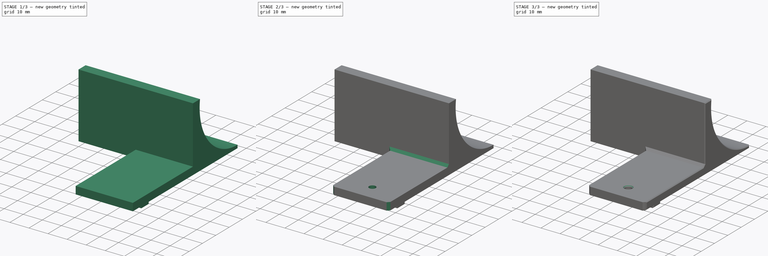
[diagram: build sequence overview — one tinted view per stage of 3, left to right]
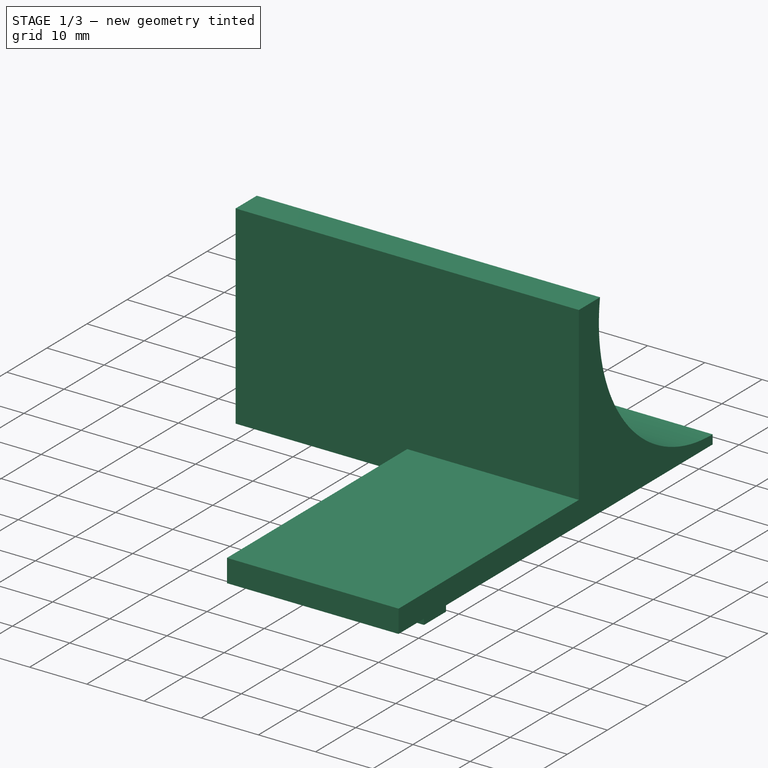
[diagram: stage 1 of 3 — iso view after this stage's code; geometry added in this stage tinted green]
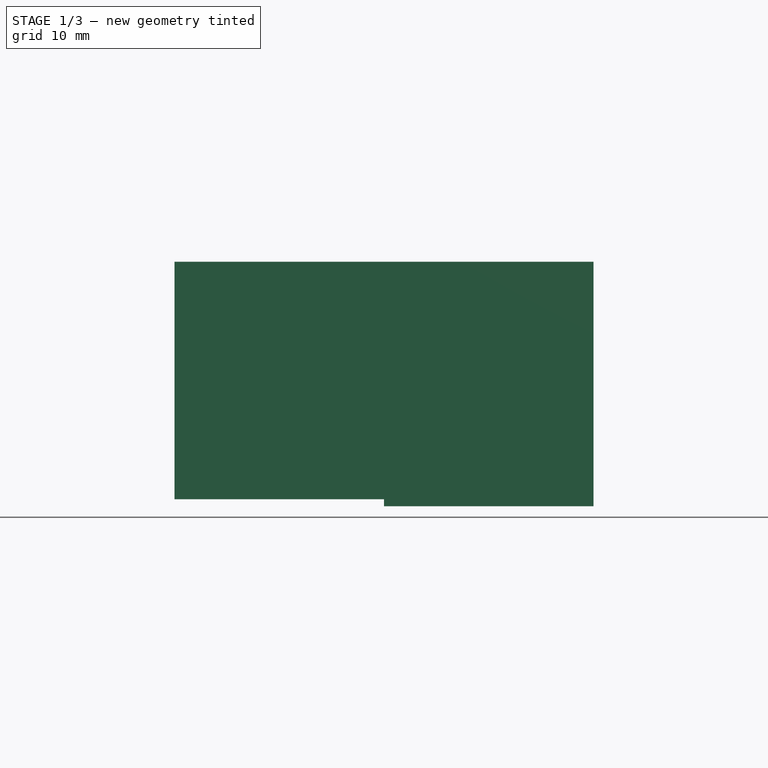
[diagram: stage 1 of 3 — front view after this stage's code; geometry added in this stage tinted green]
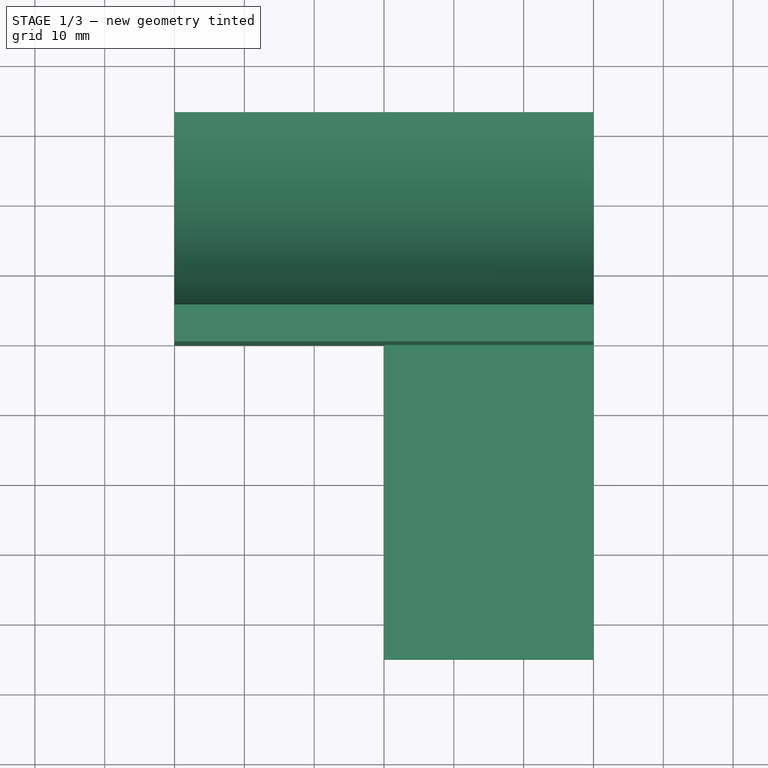
[diagram: stage 1 of 3 — top view after this stage's code; geometry added in this stage tinted green]
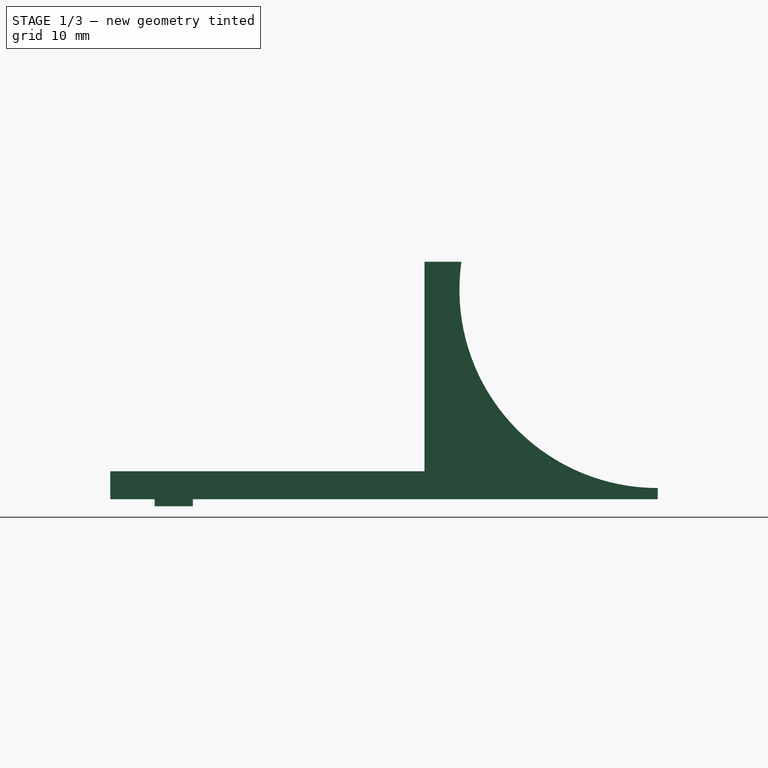
[diagram: stage 1 of 3 — right view after this stage's code; geometry added in this stage tinted green]
FCSTD DOCUMENT  (FreeCAD 0.20R29410 (Git))
Label: Heat Deflector
License: Creative Commons Attribution-NonCommercial-ShareAlike
LicenseURL: http://creativecommons.org/licenses/by-nc-sa/4.0/
objects: Sketcher::SketchObject×3, PartDesign::Chamfer×3, PartDesign::Pocket×2, PartDesign::Pad×1, PartDesign::Body×1
note: 16 computed .brp shape members not serialized (recipe doc carries the construction recipe); baked Part::Feature solids carry a one-line shape summary decoded from their .brp

FEATURE [Sketcher::SketchObject] Sketch
  FullyConstrained = true
  MapMode = 5
  Placement = pos=(0,0,0) rot=(0.57735,0.57735,0.57735;2.0944rad)
  Support = -> [YZ_Plane]
  expr: Constraints[40] = .Constraints.Lip
  sketch-geometry (18):
    g0: LineSegment StartX=-45 StartY=-4 StartZ=0 EndX=-45 EndY=0 EndZ=0
    g1: LineSegment StartX=-45 StartY=0 StartZ=0 EndX=0 EndY=0 EndZ=0
    g2: LineSegment StartX=0 StartY=0 StartZ=0 EndX=0 EndY=30 EndZ=0
    g3: LineSegment StartX=33.4 StartY=-2.4 StartZ=0 EndX=33.4 EndY=-4 EndZ=0
    g4: LineSegment StartX=-33.175 StartY=-4 StartZ=0 EndX=-33.175 EndY=-5 EndZ=0
    g5: LineSegment StartX=-33.175 StartY=-5 StartZ=0 EndX=-38.65 EndY=-5 EndZ=0
    g6: LineSegment StartX=-38.65 StartY=-5 StartZ=0 EndX=-38.65 EndY=-4 EndZ=0
    g7: LineSegment StartX=-38.65 StartY=-4 StartZ=0 EndX=-45 EndY=-4 EndZ=0
    g8: LineSegment StartX=33.4 StartY=-4 StartZ=0 EndX=0 EndY=-4 EndZ=0
    g9: LineSegment StartX=0 StartY=-4 StartZ=0 EndX=-33.175 EndY=-4 EndZ=0
    g10: LineSegment StartX=0 StartY=30 StartZ=0 EndX=5 EndY=30 EndZ=0
    g11: LineSegment StartX=0 StartY=0 StartZ=0 EndX=0 EndY=-4 EndZ=0
    g12: LineSegment StartX=5 StartY=30 StartZ=0 EndX=33.4 EndY=30 EndZ=0
    g13: LineSegment StartX=33.4 StartY=-2.4 StartZ=0 EndX=33.4 EndY=26 EndZ=0
    g14: LineSegment StartX=33.4 StartY=26 StartZ=0 EndX=33.4 EndY=30 EndZ=0
    g15: ArcOfCircle CenterX=33.4 CenterY=26 CenterZ=0 NormalX=0 NormalY=0 NormalZ=1 AngleXU=0 Radius=28.4 StartAngle=3.00028 EndAngle=4.71239
    g16: LineSegment StartX=5 StartY=30 StartZ=0 EndX=5.2831 EndY=30 EndZ=0
    g17: LineSegment StartX=-35.9125 StartY=-5 StartZ=0 EndX=0 EndY=-5 EndZ=0
  constraints (53):
    c: PointOnObject(g0,g-1)
    c: Vertical(g0)
    c: Coincident(g0,g1)
    c: PointOnObject(g1,g-1)
    c: Coincident(g1,g2)
    c: PointOnObject(g2,g-2)
    c: Vertical(g2)
    c: Coincident(g3,g8)
    c: Coincident(g9,g4)
    c: Vertical(g4)
    c: Coincident(g4,g5)
    c: Coincident(g5,g6)
    c: Coincident(g6,g7)
    c: Coincident(g7,g0)
    c: Horizontal(g7)
    c: Horizontal(g5)
    c: Vertical(g6)
    c: Vertical(g3)
    c: DistanceX(g5,g5) = 5.475
    c: DistanceY(g0,g0) = 4  'Lip'
    c: DistanceY(g6,g6) = 1
    c: DistanceX(g1,g1) = 45
    c: DistanceX(g7,g7) = 6.35
    c: Coincident(g8,g9)
    c: Horizontal(g8)
    c: Horizontal(g9)
    c: PointOnObject(g8,g-2)
    c: Coincident(g10,g2)
    c: Horizontal(g10)
    c: Coincident(g11,g1)
    c: Coincident(g11,g8)
    c: Equal(g0,g11)
    c: Coincident(g12,g10)
    c: Horizontal(g12)
    c: Coincident(g13,g3)
    c: Coincident(g12,g14)
    c: DistanceY(g2,g2) = 30  'Height'
    c: Coincident(g13,g14)
    c: Vertical(g13)
    c: Vertical(g14)
    c: DistanceY(g14,g14) = 4
    c: DistanceY(g3,g3) = 1.6
    c: Equal(g12,g13)
    c: Coincident(g15,g13)
    c: Coincident(g15,g3)
    c: PointOnObject(g15,g12)
    c: Coincident(g16,g10)
    c: Coincident(g16,g15)
    c: PointOnObject(g17,g-2)
    c: Symmetric(g5,g4,g17)
    c: Horizontal(g17)
    c: DistanceX(g10,g10) = 5
    c: DistanceX(g17,g17) = 35.9125  'Hole'
FEATURE [PartDesign::Pad] Pad
  Direction = (1,-2e-16,3e-16)
  Length = 60
  Length2 = 10
  Placement = pos=(0,0,0) rot=(0.57735,0.57735,0.57735;2.0944rad)
  Profile = -> Sketch
  ReferenceAxis = -> Sketch [N_Axis]
  Type = 0
FEATURE [Sketcher::SketchObject] Sketch001
  FullyConstrained = true
  MapMode = 5
  Support = -> [XY_Plane]
  sketch-geometry (4):
    g0: LineSegment StartX=0 StartY=0 StartZ=0 EndX=30 EndY=0 EndZ=0
    g1: LineSegment StartX=30 StartY=0 StartZ=0 EndX=30 EndY=-45 EndZ=0
    g2: LineSegment StartX=30 StartY=-45 StartZ=0 EndX=0 EndY=-45 EndZ=0
    g3: LineSegment StartX=0 StartY=-45 StartZ=0 EndX=0 EndY=0 EndZ=0
  constraints (11):
    c: Coincident(g0,g1)
    c: Coincident(g1,g2)
    c: Coincident(g2,g3)
    c: Coincident(g3,g0)
    c: Horizontal(g0)
    c: Horizontal(g2)
    c: Vertical(g1)
    c: Vertical(g3)
    c: Coincident(g0,g-1)
    c: DistanceX(g2,g2) = 30
    c: DistanceY(g3,g3) = 45
FEATURE [PartDesign::Pocket] Pocket
  BaseFeature = -> Pad
  Direction = (0,0,-1)
  Length = 5
  Length2 = 5
  Placement = pos=(0,0,0) rot=(0.57735,0.57735,0.57735;2.0944rad)
  Profile = -> Sketch001
  ReferenceAxis = -> Sketch001 [N_Axis]
  Refine = true
  Type = 0
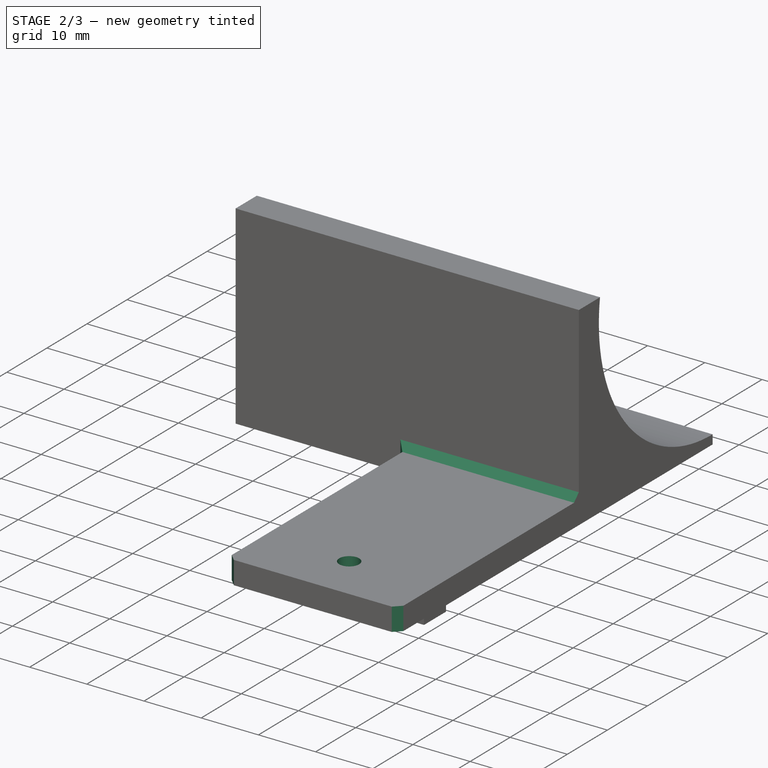
[diagram: stage 2 of 3 — iso view after this stage's code; geometry added in this stage tinted green]
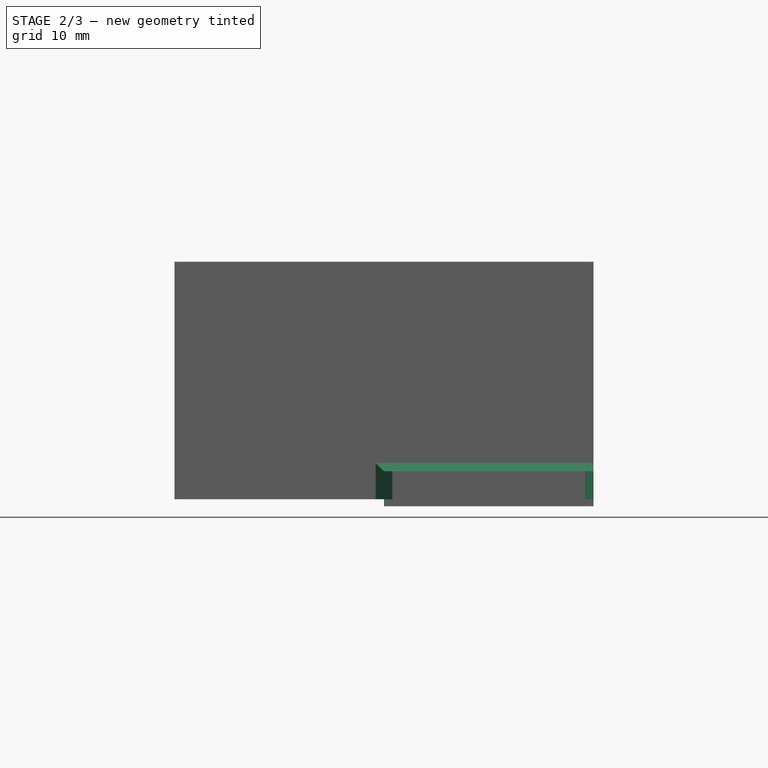
[diagram: stage 2 of 3 — front view after this stage's code; geometry added in this stage tinted green]
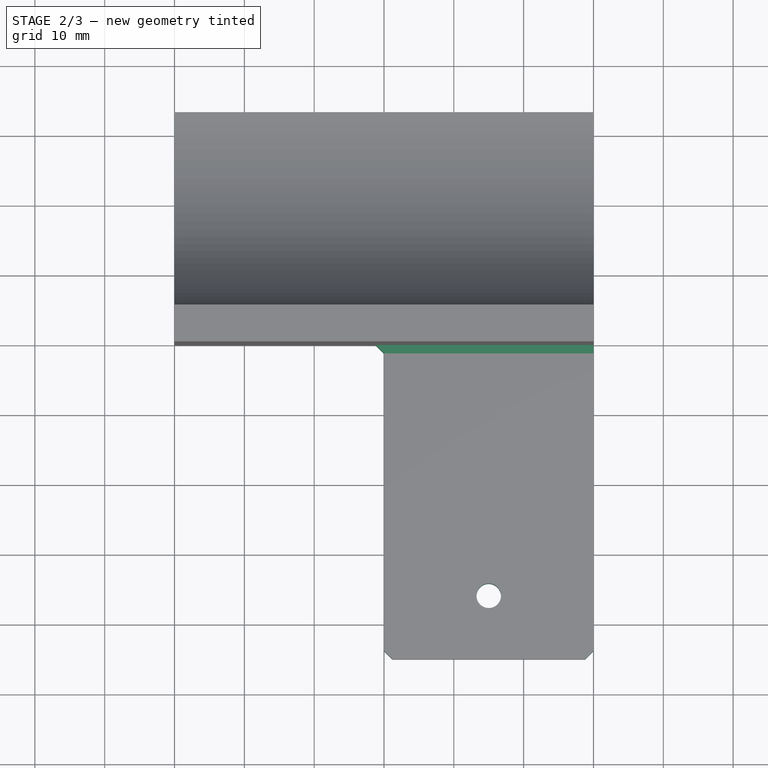
[diagram: stage 2 of 3 — top view after this stage's code; geometry added in this stage tinted green]
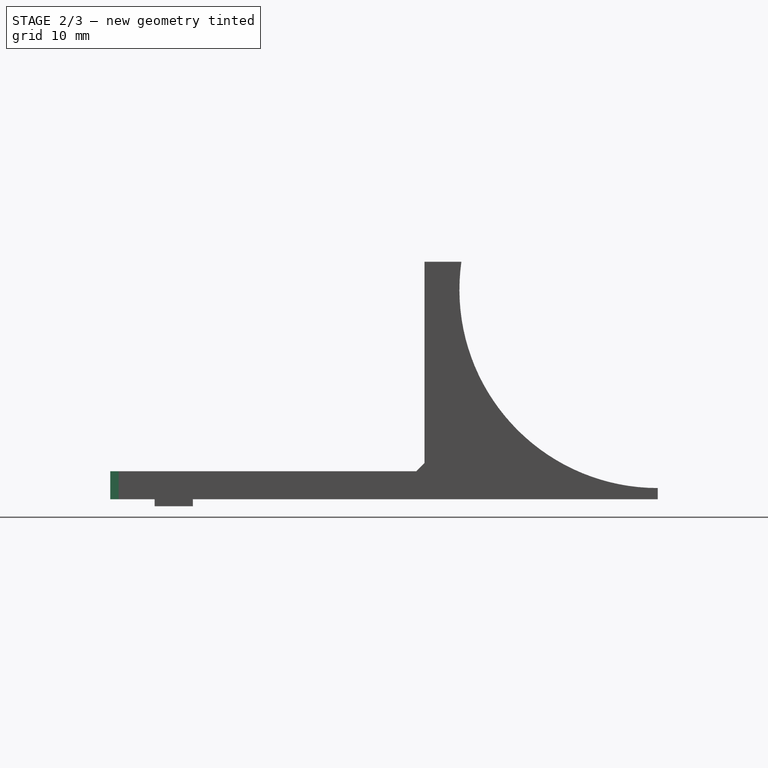
[diagram: stage 2 of 3 — right view after this stage's code; geometry added in this stage tinted green]
FEATURE [Sketcher::SketchObject] Sketch002
  FullyConstrained = true
  MapMode = 5
  Support = -> [XY_Plane]
  expr: Constraints[2] = Sketch.Constraints.Hole
  sketch-geometry (1):
    g0: Circle CenterX=45 CenterY=-35.9125 CenterZ=0 NormalX=0 NormalY=0 NormalZ=1 AngleXU=0 Radius=1.75
  constraints (3):
    c: DistanceX(g-1,g0) = 45
    c: Diameter(g0) = 3.5
    c: DistanceY(g0,g-1) = 35.9125
FEATURE [PartDesign::Pocket] Pocket001
  BaseFeature = -> Pocket
  Direction = (0,0,-1)
  Length = 5
  Length2 = 5
  Placement = pos=(0,0,0) rot=(0.57735,0.57735,0.57735;2.0944rad)
  Profile = -> Sketch002
  ReferenceAxis = -> Sketch002 [N_Axis]
  Type = 1
FEATURE [PartDesign::Chamfer] Chamfer
  Angle = 45
  Base = -> Pocket001 [Edge11,Edge12,Edge3,Edge1]
  BaseFeature = -> Pocket001
  ChamferType = 0
  FlipDirection = false
  Placement = pos=(0,0,0) rot=(0.57735,0.57735,0.57735;2.0944rad)
  Size = 1.2
  Size2 = 1
  SupportTransform = false
  UseAllEdges = false
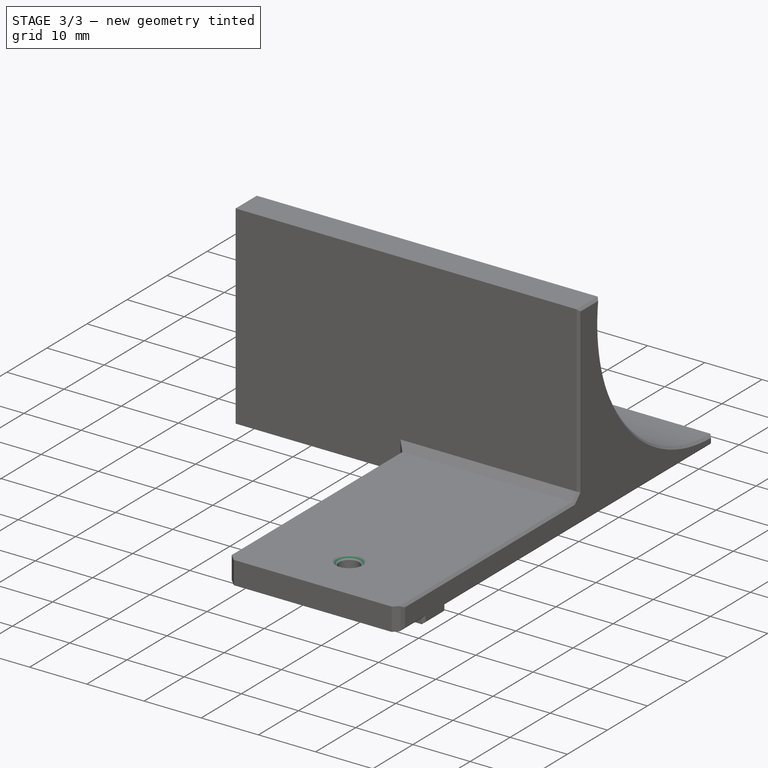
[diagram: stage 3 of 3 — iso view after this stage's code; geometry added in this stage tinted green]
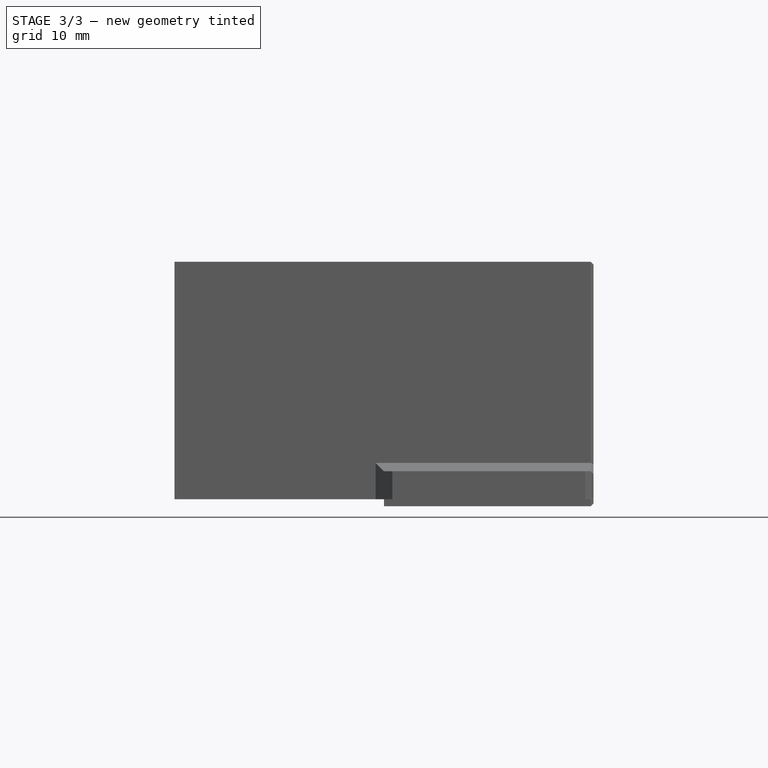
[diagram: stage 3 of 3 — front view after this stage's code; geometry added in this stage tinted green]
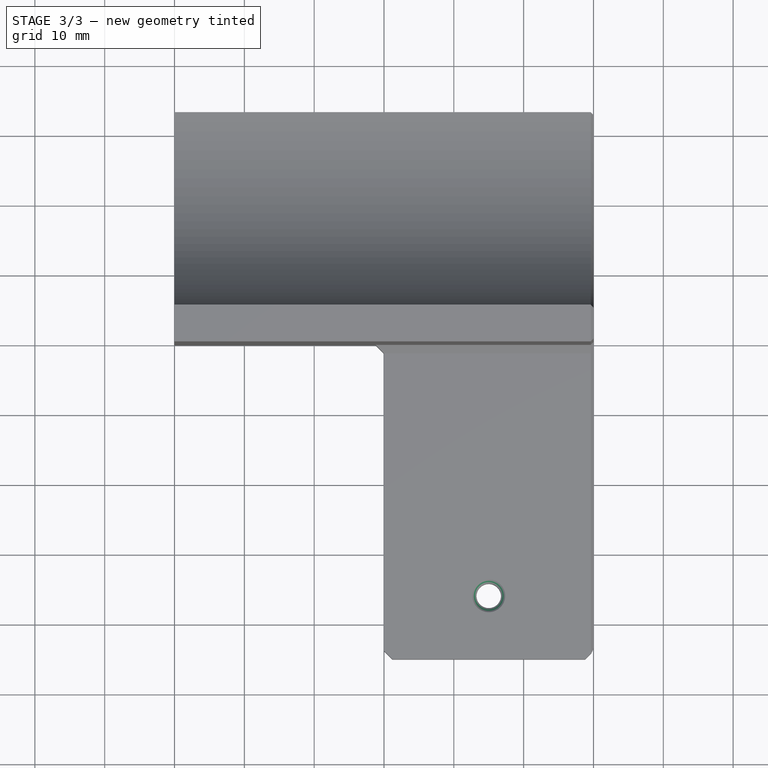
[diagram: stage 3 of 3 — top view after this stage's code; geometry added in this stage tinted green]
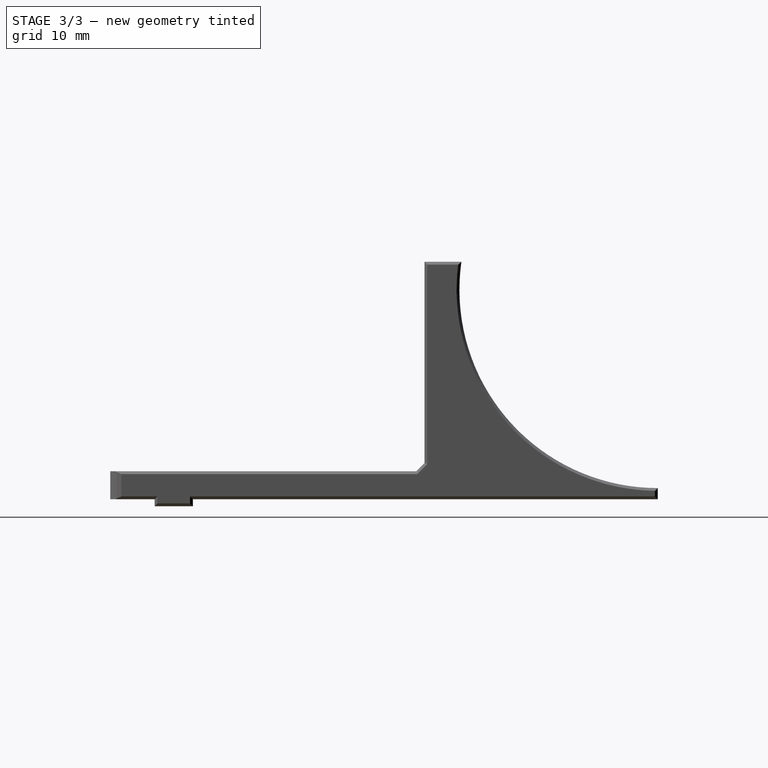
[diagram: stage 3 of 3 — right view after this stage's code; geometry added in this stage tinted green]
FEATURE [PartDesign::Chamfer] Chamfer001
  Angle = 45
  Base = -> Chamfer [Edge10]
  BaseFeature = -> Chamfer
  ChamferType = 0
  FlipDirection = false
  Placement = pos=(0,0,0) rot=(0.57735,0.57735,0.57735;2.0944rad)
  Size = 0.6
  Size2 = 1
  SupportTransform = false
  UseAllEdges = false
FEATURE [PartDesign::Chamfer] Chamfer002
  Angle = 45
  Base = -> Chamfer001 [Face6]
  BaseFeature = -> Chamfer001
  ChamferType = 0
  FlipDirection = false
  Placement = pos=(0,0,0) rot=(0.57735,0.57735,0.57735;2.0944rad)
  Size = 0.4
  Size2 = 1
  SupportTransform = false
  UseAllEdges = false
FEATURE [PartDesign::Body] Body
  Group = -> [Sketch,Pad,Sketch001,Pocket,Sketch002,Pocket001,Chamfer,Chamfer001,Chamfer002]
  Origin = -> Origin
  Tip = -> Chamfer002
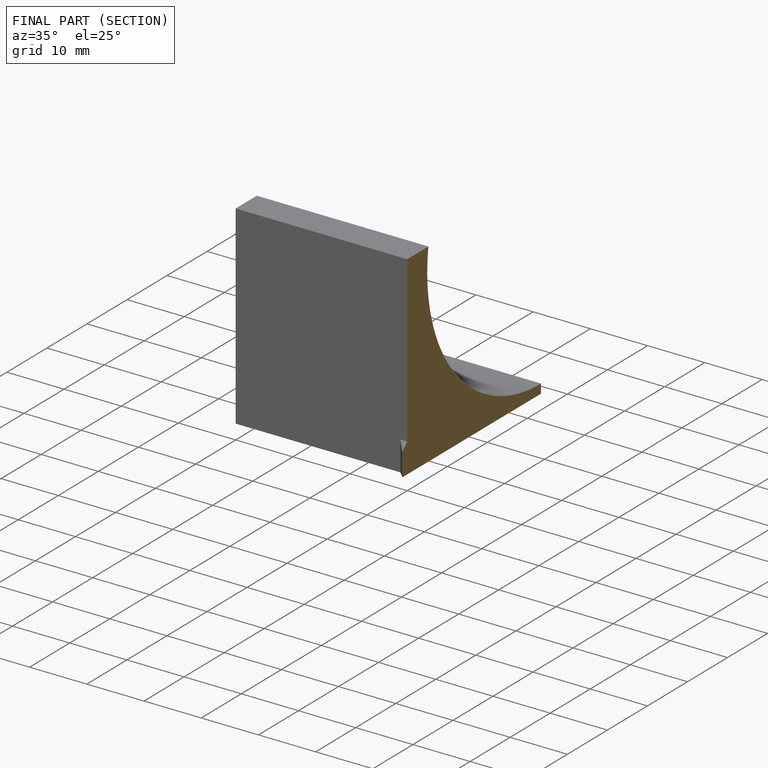
[diagram: finished part — half-section view (interior)]
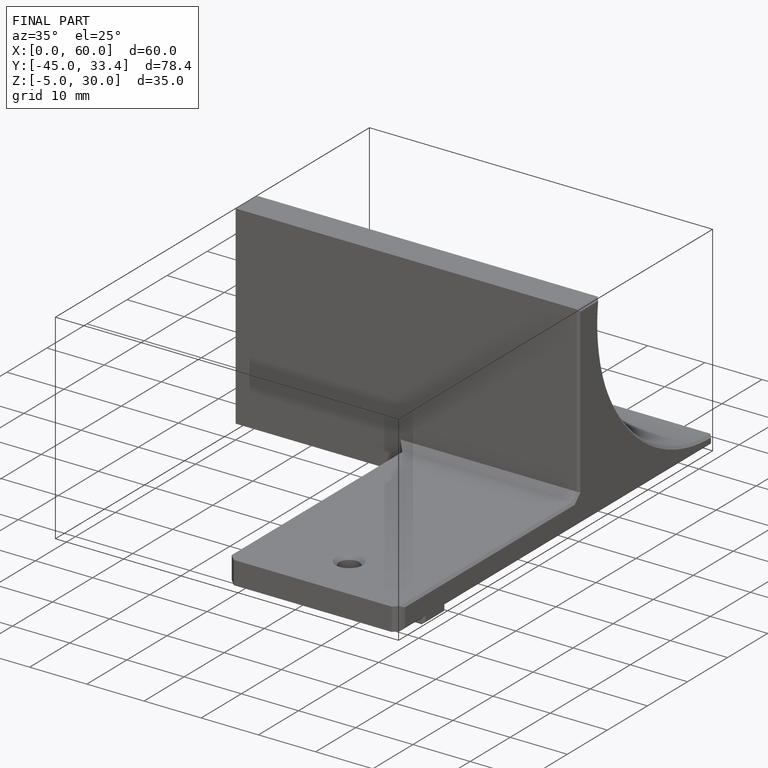
[diagram: finished part — iso view with bounding-box wireframe]
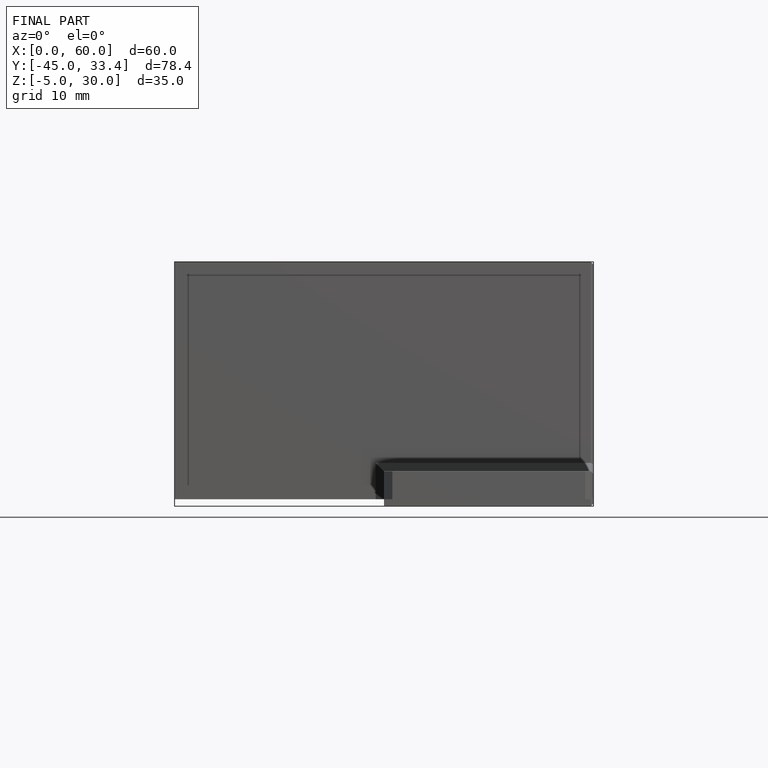
[diagram: finished part — front view with bounding-box wireframe]
